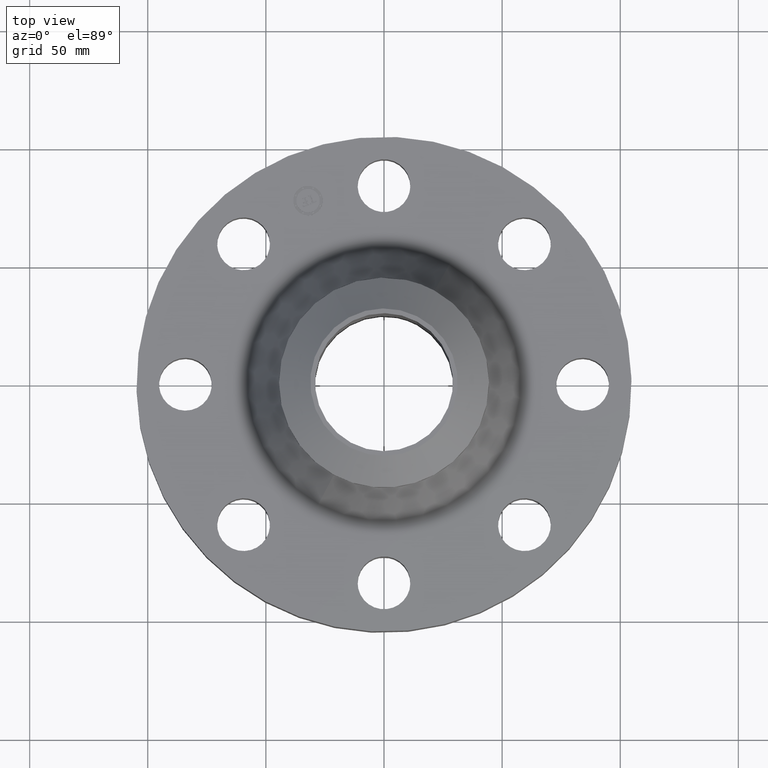
[diagram: clean part render]
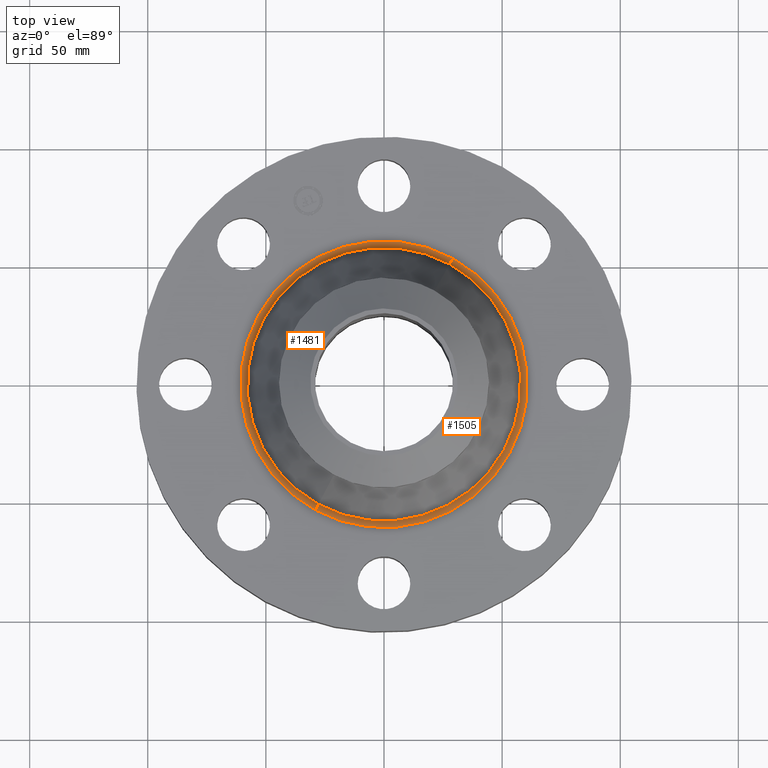
[diagram: same view with one multi-face feature highlighted, each face labeled with its STEP entity id]
A machine part, top view. The highlighted faces form ONE feature: a constant-radius fillet chain: 2 tangent blend faces with common blend radius 3.048 mm. The faces share edges in the B-rep.
Their STEP definitions:
[1] entity #1481 (Torus):
#473=AXIS2_PLACEMENT_3D('Circle Axis2P3D',#471,#472,$) ;
#1454=AXIS2_PLACEMENT_3D('Torus Axis2P3D',#1451,#1452,#1453) ;
#1458=AXIS2_PLACEMENT_3D('Circle Axis2P3D',#1456,#1457,$) ;
#1465=AXIS2_PLACEMENT_3D('Circle Axis2P3D',#1463,#1464,$) ;
#1472=AXIS2_PLACEMENT_3D('Circle Axis2P3D',#1470,#1471,$) ;
#471=CARTESIAN_POINT('Axis2P3D Location',(5.59482469102E-016,5.33410586042E-012,1.25000000001)) ;
#475=CARTESIAN_POINT('Vertex',(-1.14604206374,-2.09781592625,1.25000000001)) ;
#477=CARTESIAN_POINT('Vertex',(1.14604206374,2.09781592625,1.25000000001)) ;
#1451=CARTESIAN_POINT('Axis2P3D Location',(0.,0.,1.37000000001)) ;
#1456=CARTESIAN_POINT('Axis2P3D Location',(-1.14604206375,-2.09781592625,1.37000000001)) ;
#1460=CARTESIAN_POINT('Vertex',(-1.09282286112,-2.00039882928,1.32441902054)) ;
#1463=CARTESIAN_POINT('Axis2P3D Location',(0.,0.,1.32441902054)) ;
#1467=CARTESIAN_POINT('Vertex',(1.09282286112,2.00039882928,1.32441902054)) ;
#1470=CARTESIAN_POINT('Axis2P3D Location',(1.14604206375,2.09781592625,1.37000000001)) ;
#472=DIRECTION('Axis2P3D Direction',(0.,0.,-0.0393700787402)) ;
#1452=DIRECTION('Axis2P3D Direction',(0.,0.,-0.0393700787402)) ;
#1453=DIRECTION('Axis2P3D XDirection',(-0.0188750212049,-0.0345504945626,0.)) ;
#1457=DIRECTION('Axis2P3D Direction',(0.0345504945626,-0.0188750212049,0.)) ;
#1464=DIRECTION('Axis2P3D Direction',(-0.,0.,-0.0393700787402)) ;
#1471=DIRECTION('Axis2P3D Direction',(-0.0345504945626,0.0188750212049,0.)) ;
#1476=ORIENTED_EDGE('',*,*,#479,.F.) ;
#1477=ORIENTED_EDGE('',*,*,#1462,.T.) ;
#1478=ORIENTED_EDGE('',*,*,#1469,.T.) ;
#1479=ORIENTED_EDGE('',*,*,#1474,.F.) ;
#1481=ADVANCED_FACE('PartBody',(#1480),#1455,.F.) ;
#474=CIRCLE('generated circle',#473,2.3904485086) ;
#1459=CIRCLE('generated circle',#1458,0.12) ;
#1466=CIRCLE('generated circle',#1465,2.27944231819) ;
#1473=CIRCLE('generated circle',#1472,0.12) ;
#1455=TOROIDAL_SURFACE('homeo Torus',#1454,2.39044850861,0.12) ;
#479=EDGE_CURVE('',#476,#478,#474,.T.) ;
#1462=EDGE_CURVE('',#476,#1461,#1459,.T.) ;
#1469=EDGE_CURVE('',#1461,#1468,#1466,.T.) ;
#1474=EDGE_CURVE('',#478,#1468,#1473,.T.) ;
#1475=EDGE_LOOP('',(#1476,#1477,#1478,#1479)) ;
#1480=FACE_OUTER_BOUND('',#1475,.T.) ;
#476=VERTEX_POINT('',#475) ;
#478=VERTEX_POINT('',#477) ;
#1461=VERTEX_POINT('',#1460) ;
#1468=VERTEX_POINT('',#1467) ;
[2] entity #1505 (Torus):
#482=AXIS2_PLACEMENT_3D('Circle Axis2P3D',#480,#481,$) ;
#1458=AXIS2_PLACEMENT_3D('Circle Axis2P3D',#1456,#1457,$) ;
#1472=AXIS2_PLACEMENT_3D('Circle Axis2P3D',#1470,#1471,$) ;
#1492=AXIS2_PLACEMENT_3D('Torus Axis2P3D',#1489,#1490,#1491) ;
#1496=AXIS2_PLACEMENT_3D('Circle Axis2P3D',#1494,#1495,$) ;
#475=CARTESIAN_POINT('Vertex',(-1.14604206374,-2.09781592625,1.25000000001)) ;
#477=CARTESIAN_POINT('Vertex',(1.14604206374,2.09781592625,1.25000000001)) ;
#480=CARTESIAN_POINT('Axis2P3D Location',(-5.59482469102E-016,5.33410586042E-012,1.25000000001)) ;
#1456=CARTESIAN_POINT('Axis2P3D Location',(-1.14604206375,-2.09781592625,1.37000000001)) ;
#1460=CARTESIAN_POINT('Vertex',(-1.09282286112,-2.00039882928,1.32441902054)) ;
#1467=CARTESIAN_POINT('Vertex',(1.09282286112,2.00039882928,1.32441902054)) ;
#1470=CARTESIAN_POINT('Axis2P3D Location',(1.14604206375,2.09781592625,1.37000000001)) ;
#1489=CARTESIAN_POINT('Axis2P3D Location',(0.,0.,1.37000000001)) ;
#1494=CARTESIAN_POINT('Axis2P3D Location',(0.,0.,1.32441902054)) ;
#481=DIRECTION('Axis2P3D Direction',(0.,0.,-0.0393700787402)) ;
#1457=DIRECTION('Axis2P3D Direction',(0.0345504945626,-0.0188750212049,0.)) ;
#1471=DIRECTION('Axis2P3D Direction',(-0.0345504945626,0.0188750212049,0.)) ;
#1490=DIRECTION('Axis2P3D Direction',(0.,0.,-0.0393700787402)) ;
#1491=DIRECTION('Axis2P3D XDirection',(0.0188750212049,0.0345504945626,0.)) ;
#1495=DIRECTION('Axis2P3D Direction',(-0.,0.,-0.0393700787402)) ;
#1500=ORIENTED_EDGE('',*,*,#484,.F.) ;
#1501=ORIENTED_EDGE('',*,*,#1474,.T.) ;
#1502=ORIENTED_EDGE('',*,*,#1498,.T.) ;
#1503=ORIENTED_EDGE('',*,*,#1462,.F.) ;
#1505=ADVANCED_FACE('PartBody',(#1504),#1493,.F.) ;
#483=CIRCLE('generated circle',#482,2.3904485086) ;
#1459=CIRCLE('generated circle',#1458,0.12) ;
#1473=CIRCLE('generated circle',#1472,0.12) ;
#1497=CIRCLE('generated circle',#1496,2.27944231819) ;
#1493=TOROIDAL_SURFACE('homeo Torus',#1492,2.39044850861,0.12) ;
#484=EDGE_CURVE('',#478,#476,#483,.T.) ;
#1462=EDGE_CURVE('',#476,#1461,#1459,.T.) ;
#1474=EDGE_CURVE('',#478,#1468,#1473,.T.) ;
#1498=EDGE_CURVE('',#1468,#1461,#1497,.T.) ;
#1499=EDGE_LOOP('',(#1500,#1501,#1502,#1503)) ;
#1504=FACE_OUTER_BOUND('',#1499,.T.) ;
#476=VERTEX_POINT('',#475) ;
#478=VERTEX_POINT('',#477) ;
#1461=VERTEX_POINT('',#1460) ;
#1468=VERTEX_POINT('',#1467) ;